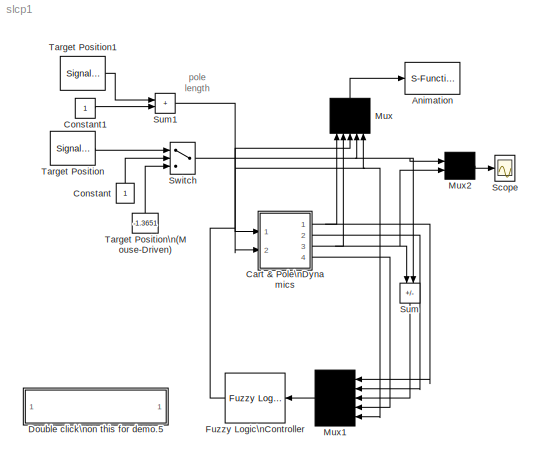
MODEL slcp1
KIND model
CONFIG AbsTol = 1e-6
CONFIG FixedStep = auto
CONFIG MaxStep = 0.1
CONFIG MinStep = auto
CONFIG PreLoadFcn = initcp1
CONFIG RelTol = 1e-3
CONFIG Solver = ode45
CONFIG SolverMode = SingleTasking
CONFIG StartTime = 0.0
CONFIG StopTime = 1000
BLOCK [S-Function] Animation
  FunctionName = animcp1
  PortCounts = []
  Ports = [1]
  SFunctionModules = ''
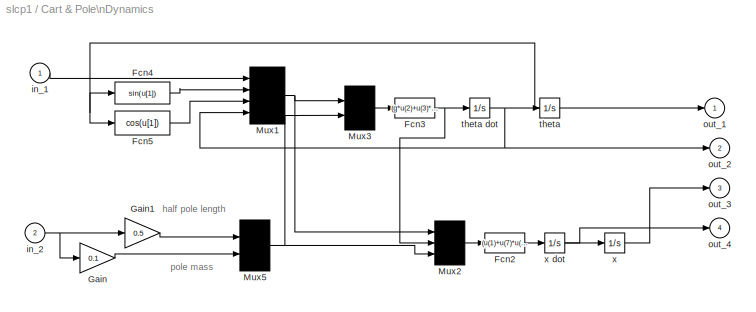
BLOCK [SubSystem] Cart & Pole\nDynamics
  MaskCallbackString = |
  MaskDescription = Inverted Pendulum (cart & pole)
  MaskDisplay = plot(-4,-1,4,6,[0 3 2.8 -0.2 0],[1 5 5.15 1.15 1],[-1 -1 1 1 -1],[1 0 0 1 1],[-3.5 3.5],[0 0])
  MaskEnableString = on,on
  MaskHelp = Inverted Pendulum
  MaskIconFrame = on
  MaskIconOpaque = on
  MaskIconRotate = none
  MaskIconUnits = autoscale
  MaskInitialization = init_cond = @1; spec = @2;mc=spec(1);g=spec(2);
  MaskPromptString = Initial Conditions (angle, angular velocity, cart position and cart velocity):|Physical Specifications (cart mass and g):
  MaskStyleString = edit,edit
  MaskToolTipString = on,on
  MaskTunableValueString = on,on
  MaskType = Cart & Pole
  MaskValueString = [0, 0, 0, 0]|[1.0, 9.8]
  MaskVariableAliases = ,
  MaskVisibilityString = on,on
  Ports = [2, 4]
  RTWFcnNameOpts = Auto
  RTWFileNameOpts = Auto
  RTWSystemCode = Auto
  ShowPortLabels = off
  TreatAsAtomicUnit = off
BLOCK [Fcn] Cart & Pole\nDynamics/Fcn2
  Expr = (u(1)+u(7)*u(6)*(u(4)*u(4)*u(2)-u(5)*u(3)))/(mc+u(7))
BLOCK [Fcn] Cart & Pole\nDynamics/Fcn3
  Expr = (g*u(2)+u(3)*((-u(1)-u(6)*u(5)*u(4)*u(4)*u(2))/(mc+u(6))))/(u(5)*(4/3-(u(6)*u(3)*u(3))/(mc+u(6))))
BLOCK [Fcn] Cart & Pole\nDynamics/Fcn4
  Expr = sin(u[1])
BLOCK [Fcn] Cart & Pole\nDynamics/Fcn5
  Expr = cos(u[1])
BLOCK [Gain] Cart & Pole\nDynamics/Gain
  Gain = 0.1
  Multiplication = Element-wise(K.*u)
  SaturateOnIntegerOverflow = on
BLOCK [Gain] Cart & Pole\nDynamics/Gain1
  Gain = 0.5
  Multiplication = Element-wise(K.*u)
  SaturateOnIntegerOverflow = on
BLOCK [Mux] Cart & Pole\nDynamics/Mux1
  BusCreatorMode = off
  DisplayOption = none
  Inputs = 4
  Ports = [4, 1]
BLOCK [Mux] Cart & Pole\nDynamics/Mux2
  BusCreatorMode = off
  DisplayOption = none
  Inputs = [4,1,2]
  Ports = [3, 1]
BLOCK [Mux] Cart & Pole\nDynamics/Mux3
  BusCreatorMode = off
  DisplayOption = none
  Inputs = [4,2]
  Ports = [2, 1]
BLOCK [Mux] Cart & Pole\nDynamics/Mux5
  BusCreatorMode = off
  DisplayOption = none
  Inputs = 2
  Ports = [2, 1]
BLOCK [Inport] Cart & Pole\nDynamics/in_1
  Interpolate = on
  Port = 1
BLOCK [Inport] Cart & Pole\nDynamics/in_2
  Interpolate = on
  Port = 2
BLOCK [Outport] Cart & Pole\nDynamics/out_1
  InitialOutput = 0
  OutputWhenDisabled = held
  Port = 1
BLOCK [Outport] Cart & Pole\nDynamics/out_2
  InitialOutput = 0
  OutputWhenDisabled = held
  Port = 2
BLOCK [Outport] Cart & Pole\nDynamics/out_3
  InitialOutput = 0
  OutputWhenDisabled = held
  Port = 3
BLOCK [Outport] Cart & Pole\nDynamics/out_4
  InitialOutput = 0
  OutputWhenDisabled = held
  Port = 4
BLOCK [Integrator] Cart & Pole\nDynamics/theta
  AbsoluteTolerance = auto
  ExternalReset = none
  InitialCondition = init_cond(1)
  InitialConditionSource = internal
  LimitOutput = off
  LowerSaturationLimit = -inf
  Ports = [1, 1]
  ShowSaturationPort = off
  ShowStatePort = off
  UpperSaturationLimit = inf
BLOCK [Integrator] Cart & Pole\nDynamics/theta dot
  AbsoluteTolerance = auto
  ExternalReset = none
  InitialCondition = init_cond(2)
  InitialConditionSource = internal
  LimitOutput = off
  LowerSaturationLimit = -inf
  Ports = [1, 1]
  ShowSaturationPort = off
  ShowStatePort = off
  UpperSaturationLimit = inf
BLOCK [Integrator] Cart & Pole\nDynamics/x
  AbsoluteTolerance = auto
  ExternalReset = none
  InitialCondition = init_cond(3)
  InitialConditionSource = internal
  LimitOutput = off
  LowerSaturationLimit = -inf
  Ports = [1, 1]
  ShowSaturationPort = off
  ShowStatePort = off
  UpperSaturationLimit = inf
BLOCK [Integrator] Cart & Pole\nDynamics/x dot
  AbsoluteTolerance = auto
  ExternalReset = none
  InitialCondition = init_cond(4)
  InitialConditionSource = internal
  LimitOutput = off
  LowerSaturationLimit = -inf
  Ports = [1, 1]
  ShowSaturationPort = off
  ShowStatePort = off
  UpperSaturationLimit = inf
BLOCK [Constant] Constant
  MaskIconFrame = on
  MaskIconOpaque = on
  MaskIconRotate = none
  MaskIconUnits = autoscale
  Value = 1
  VectorParams1D = on
BLOCK [Constant] Constant1
  Value = 1
  VectorParams1D = on
BLOCK [SubSystem] Double click\non this for demo.5
  MaskDisplay = disp('Variable Initialization')
  MaskIconFrame = on
  MaskIconOpaque = on
  MaskIconRotate = none
  MaskIconUnits = autoscale
  OpenFcn = initcp
  Ports = []
  RTWFcnNameOpts = Auto
  RTWFileNameOpts = Auto
  RTWSystemCode = Auto
  ShowPortLabels = off
  TreatAsAtomicUnit = off
BLOCK [Reference] Fuzzy Logic\nController  REF=fuzblock/Fuzzy Logic \nController  (lib defined in mdl_858b3b3e7478)
  Ports = [1, 1]
  SourceBlock = fuzblock/Fuzzy Logic \nController
  SourceType = FIS
  fis = fismat
BLOCK [Mux] Mux
  BusCreatorMode = off
  DisplayOption = none
  Inputs = 5
  MaskIconFrame = on
  MaskIconOpaque = on
  MaskIconRotate = none
  MaskIconUnits = autoscale
  Ports = [5, 1]
BLOCK [Mux] Mux1
  BusCreatorMode = off
  DisplayOption = none
  Inputs = 5
  MaskIconFrame = on
  MaskIconOpaque = on
  MaskIconRotate = none
  MaskIconUnits = autoscale
  Ports = [5, 1]
BLOCK [Mux] Mux2
  BusCreatorMode = off
  DisplayOption = none
  Inputs = 2
  Ports = [2, 1]
BLOCK [Scope] Scope
  DataFormat = Array
  Decimation = 1
  Floating = off
  Grid = on
  LimitDataPoints = on
  MaxDataPoints = 5000
  NumInputPorts = 1
  Ports = [1]
  SampleInput = off
  SampleTime = 0
  SaveName = ScopeData
  SaveToWorkspace = off
  TickLabels = on
  TimeRange = 10.000000
  YMax = 2.000000
  YMin = -2.000000
  ZoomMode = on
BLOCK [Sum] Sum
  IconShape = rectangular
  Inputs = +-
  MaskIconFrame = on
  MaskIconOpaque = on
  MaskIconRotate = none
  MaskIconUnits = autoscale
  Ports = [2, 1]
  SaturateOnIntegerOverflow = on
BLOCK [Sum] Sum1
  IconShape = rectangular
  Inputs = ++
  Ports = [2, 1]
  SaturateOnIntegerOverflow = on
BLOCK [Switch] Switch
  Threshold = 0
BLOCK [SignalGenerator] Target Position
  Amplitude = 1.500000
  Frequency = 0.628320
  Units = rad/sec
  VectorParams1D = on
  WaveForm = sawtooth
BLOCK [SignalGenerator] Target Position1
  Amplitude = 0.500000
  Frequency = 6.000000
  Units = rad/sec
  VectorParams1D = on
  WaveForm = sine
BLOCK [Constant] Target Position\n(Mouse-Driven)
  MaskIconFrame = on
  MaskIconOpaque = on
  MaskIconRotate = none
  MaskIconUnits = autoscale
  Value = -1.3651
  VectorParams1D = on
LINE Cart & Pole\nDynamics/Fcn2:1 -> Cart & Pole\nDynamics/x dot:1
NET Cart & Pole\nDynamics/Fcn3:1 -> Cart & Pole\nDynamics/Mux2:2, Cart & Pole\nDynamics/theta dot:1
LINE Cart & Pole\nDynamics/Fcn4:1 -> Cart & Pole\nDynamics/Mux1:2
LINE Cart & Pole\nDynamics/Fcn5:1 -> Cart & Pole\nDynamics/Mux1:3
LINE Cart & Pole\nDynamics/Gain1:1 -> Cart & Pole\nDynamics/Mux5:1
LINE Cart & Pole\nDynamics/Gain:1 -> Cart & Pole\nDynamics/Mux5:2
NET Cart & Pole\nDynamics/Mux1:1 -> Cart & Pole\nDynamics/Mux2:1, Cart & Pole\nDynamics/Mux3:1
LINE Cart & Pole\nDynamics/Mux2:1 -> Cart & Pole\nDynamics/Fcn2:1
LINE Cart & Pole\nDynamics/Mux3:1 -> Cart & Pole\nDynamics/Fcn3:1
NET Cart & Pole\nDynamics/Mux5:1 -> Cart & Pole\nDynamics/Mux2:3, Cart & Pole\nDynamics/Mux3:2
LINE Cart & Pole\nDynamics/in_1:1 -> Cart & Pole\nDynamics/Mux1:1
NET Cart & Pole\nDynamics/in_2:1 -> Cart & Pole\nDynamics/Gain1:1, Cart & Pole\nDynamics/Gain:1
NET Cart & Pole\nDynamics/theta dot:1 -> Cart & Pole\nDynamics/Mux1:4, Cart & Pole\nDynamics/out_2:1, Cart & Pole\nDynamics/theta:1
NET Cart & Pole\nDynamics/theta:1 -> Cart & Pole\nDynamics/Fcn4:1, Cart & Pole\nDynamics/Fcn5:1, Cart & Pole\nDynamics/out_1:1
NET Cart & Pole\nDynamics/x dot:1 -> Cart & Pole\nDynamics/out_4:1, Cart & Pole\nDynamics/x:1
LINE Cart & Pole\nDynamics/x:1 -> Cart & Pole\nDynamics/out_3:1
NET Cart & Pole\nDynamics:1 -> Mux1:1, Mux:1
LINE Cart & Pole\nDynamics:2 -> Mux1:2
NET Cart & Pole\nDynamics:3 -> Mux2:2, Mux:2, Sum:1
LINE Cart & Pole\nDynamics:4 -> Mux1:4
LINE Constant1:1 -> Sum1:2
LINE Constant:1 -> Switch:2
NET Fuzzy Logic\nController:1 -> Cart & Pole\nDynamics:1, Mux:3
LINE Mux1:1 -> Fuzzy Logic\nController:1
LINE Mux2:1 -> Scope:1
LINE Mux:1 -> Animation:1
NET Sum1:1 -> Cart & Pole\nDynamics:2, Mux1:5, Mux:5
LINE Sum:1 -> Mux1:3
NET Switch:1 -> Mux2:1, Mux:4, Sum:2
LINE Target Position1:1 -> Sum1:1
LINE Target Position:1 -> Switch:1
LINE Target Position\n(Mouse-Driven):1 -> Switch:3
note: NET lines group one-source signal fan-out (src -> all destinations, sorted); 1:1 wires keep LINE
